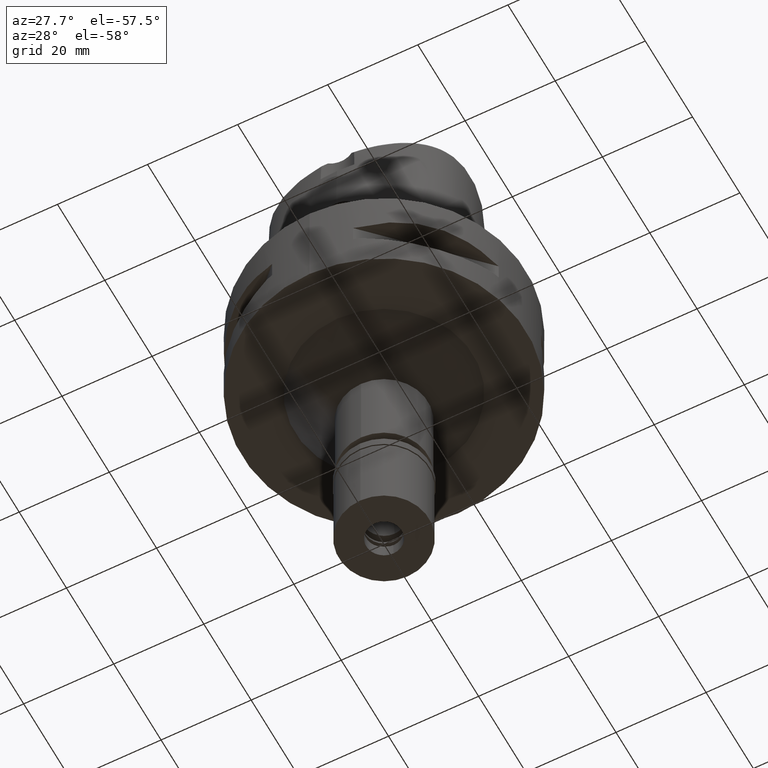
[diagram: clean part render]
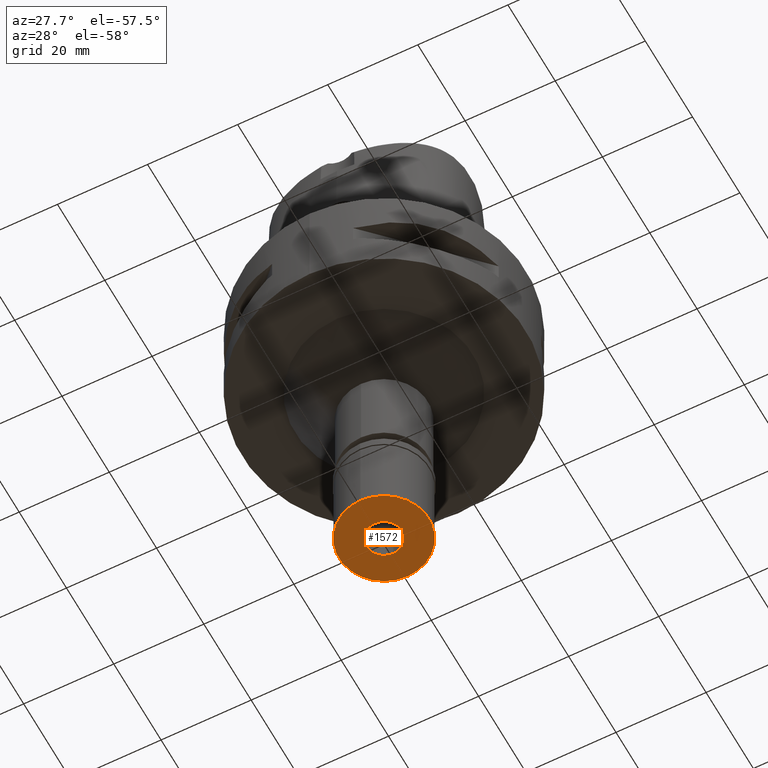
[diagram: same view with one face highlighted and labeled with its STEP entity id]
A machine part, auxiliary view. The second image highlights one B-rep face of the part: STEP entity #1572.
In plain terms, the highlighted planar face has unit normal (0, 0, -1).
Its self-contained STEP definition (entity closure, byte-faithful):
#113 = DIRECTION ( 'NONE',  ( 0.0000000000000000000, 1.000000000000000000, 0.0000000000000000000 ) ) ;
#126 = AXIS2_PLACEMENT_3D ( 'NONE', #3152, #4290, #113 ) ;
#186 = ORIENTED_EDGE ( 'NONE', *, *, #972, .F. ) ;
#214 = CIRCLE ( 'NONE', #126, 3.950000000000000178 ) ;
#238 = DIRECTION ( 'NONE',  ( 0.0000000000000000000, 0.0000000000000000000, -1.000000000000000000 ) ) ;
#972 = EDGE_CURVE ( 'NONE', #3806, #3700, #1215, .T. ) ;
#974 = DIRECTION ( 'NONE',  ( 0.0000000000000000000, 1.000000000000000000, 0.0000000000000000000 ) ) ;
#1109 = EDGE_CURVE ( 'NONE', #3700, #3806, #1773, .T. ) ;
#1186 = EDGE_LOOP ( 'NONE', ( #2833, #2140 ) ) ;
#1215 = CIRCLE ( 'NONE', #3015, 10.00000000000000000 ) ;
#1240 = VERTEX_POINT ( 'NONE', #2697 ) ;
#1360 = CARTESIAN_POINT ( 'NONE',  ( 0.0000000000000000000, 0.0000000000000000000, -20.60000000000000142 ) ) ;
#1371 = CARTESIAN_POINT ( 'NONE',  ( 0.0000000000000000000, -3.950000000000000178, -20.60000000000000142 ) ) ;
#1572 = ADVANCED_FACE ( 'NONE', ( #1894, #1972 ), #3481, .T. ) ;
#1765 = DIRECTION ( 'NONE',  ( 0.0000000000000000000, -1.000000000000000000, 0.0000000000000000000 ) ) ;
#1773 = CIRCLE ( 'NONE', #2629, 10.00000000000000000 ) ;
#1894 = FACE_OUTER_BOUND ( 'NONE', #3530, .T. ) ;
#1914 = CARTESIAN_POINT ( 'NONE',  ( 0.0000000000000000000, -10.00000000000000000, -20.60000000000000142 ) ) ;
#1936 = AXIS2_PLACEMENT_3D ( 'NONE', #4042, #238, #1765 ) ;
#1972 = FACE_BOUND ( 'NONE', #1186, .T. ) ;
#2140 = ORIENTED_EDGE ( 'NONE', *, *, #4670, .F. ) ;
#2629 = AXIS2_PLACEMENT_3D ( 'NONE', #4053, #4720, #4323 ) ;
#2697 = CARTESIAN_POINT ( 'NONE',  ( 0.0000000000000000000, 3.950000000000000178, -20.60000000000000142 ) ) ;
#2833 = ORIENTED_EDGE ( 'NONE', *, *, #4291, .F. ) ;
#3015 = AXIS2_PLACEMENT_3D ( 'NONE', #1360, #4033, #974 ) ;
#3022 = CARTESIAN_POINT ( 'NONE',  ( 0.0000000000000000000, 10.00000000000000000, -20.60000000000000142 ) ) ;
#3152 = CARTESIAN_POINT ( 'NONE',  ( 0.0000000000000000000, 0.0000000000000000000, -20.60000000000000142 ) ) ;
#3157 = ORIENTED_EDGE ( 'NONE', *, *, #1109, .F. ) ;
#3338 = AXIS2_PLACEMENT_3D ( 'NONE', #3790, #4104, #3401 ) ;
#3401 = DIRECTION ( 'NONE',  ( 0.0000000000000000000, -1.000000000000000000, 0.0000000000000000000 ) ) ;
#3429 = VERTEX_POINT ( 'NONE', #1371 ) ;
#3481 = PLANE ( 'NONE',  #3338 ) ;
#3530 = EDGE_LOOP ( 'NONE', ( #186, #3157 ) ) ;
#3670 = CIRCLE ( 'NONE', #1936, 3.950000000000000178 ) ;
#3700 = VERTEX_POINT ( 'NONE', #1914 ) ;
#3790 = CARTESIAN_POINT ( 'NONE',  ( 0.0000000000000000000, 0.0000000000000000000, -20.60000000000000142 ) ) ;
#3806 = VERTEX_POINT ( 'NONE', #3022 ) ;
#4033 = DIRECTION ( 'NONE',  ( 0.0000000000000000000, 0.0000000000000000000, 1.000000000000000000 ) ) ;
#4042 = CARTESIAN_POINT ( 'NONE',  ( 0.0000000000000000000, 0.0000000000000000000, -20.60000000000000142 ) ) ;
#4053 = CARTESIAN_POINT ( 'NONE',  ( 0.0000000000000000000, 0.0000000000000000000, -20.60000000000000142 ) ) ;
#4104 = DIRECTION ( 'NONE',  ( 0.0000000000000000000, 0.0000000000000000000, -1.000000000000000000 ) ) ;
#4290 = DIRECTION ( 'NONE',  ( 0.0000000000000000000, 0.0000000000000000000, -1.000000000000000000 ) ) ;
#4291 = EDGE_CURVE ( 'NONE', #1240, #3429, #214, .T. ) ;
#4323 = DIRECTION ( 'NONE',  ( 0.0000000000000000000, -1.000000000000000000, 0.0000000000000000000 ) ) ;
#4670 = EDGE_CURVE ( 'NONE', #3429, #1240, #3670, .T. ) ;
#4720 = DIRECTION ( 'NONE',  ( 0.0000000000000000000, 0.0000000000000000000, 1.000000000000000000 ) ) ;